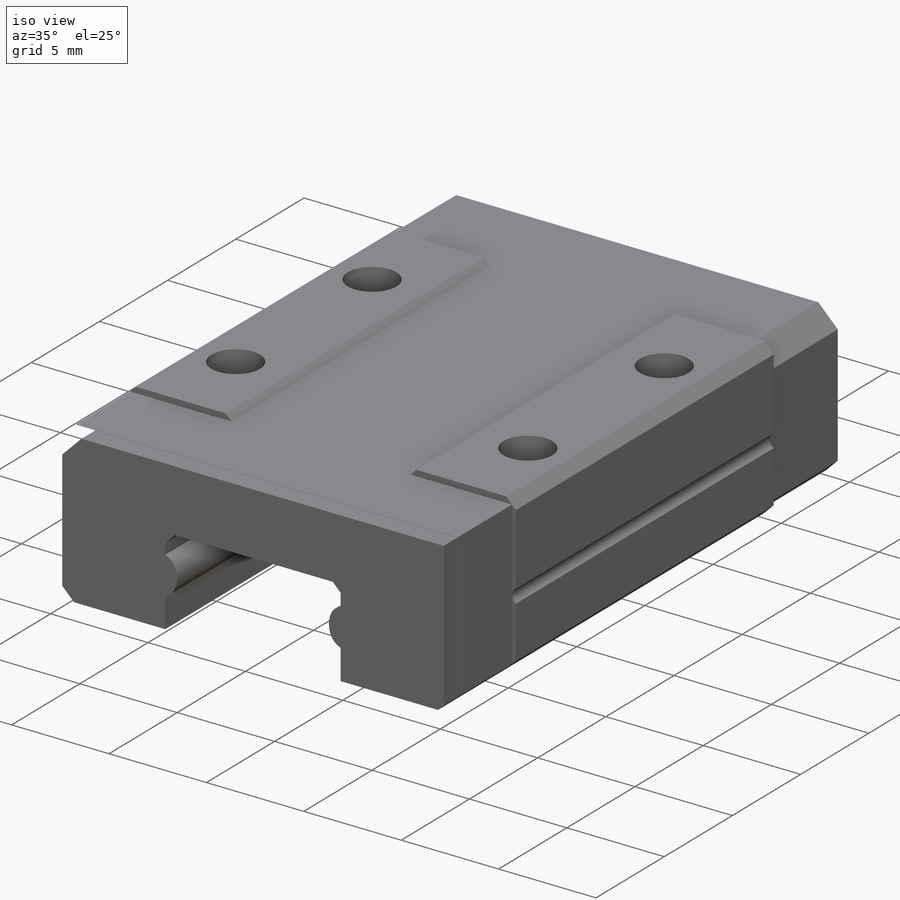
[diagram: iso view]
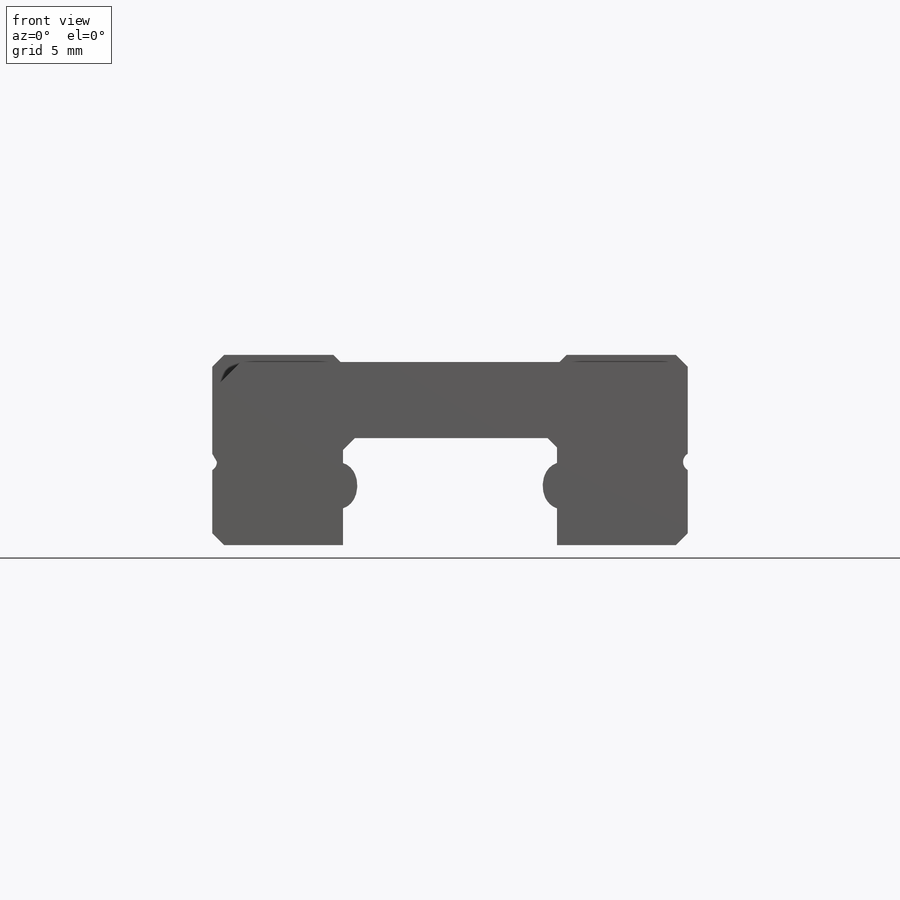
[diagram: front view]
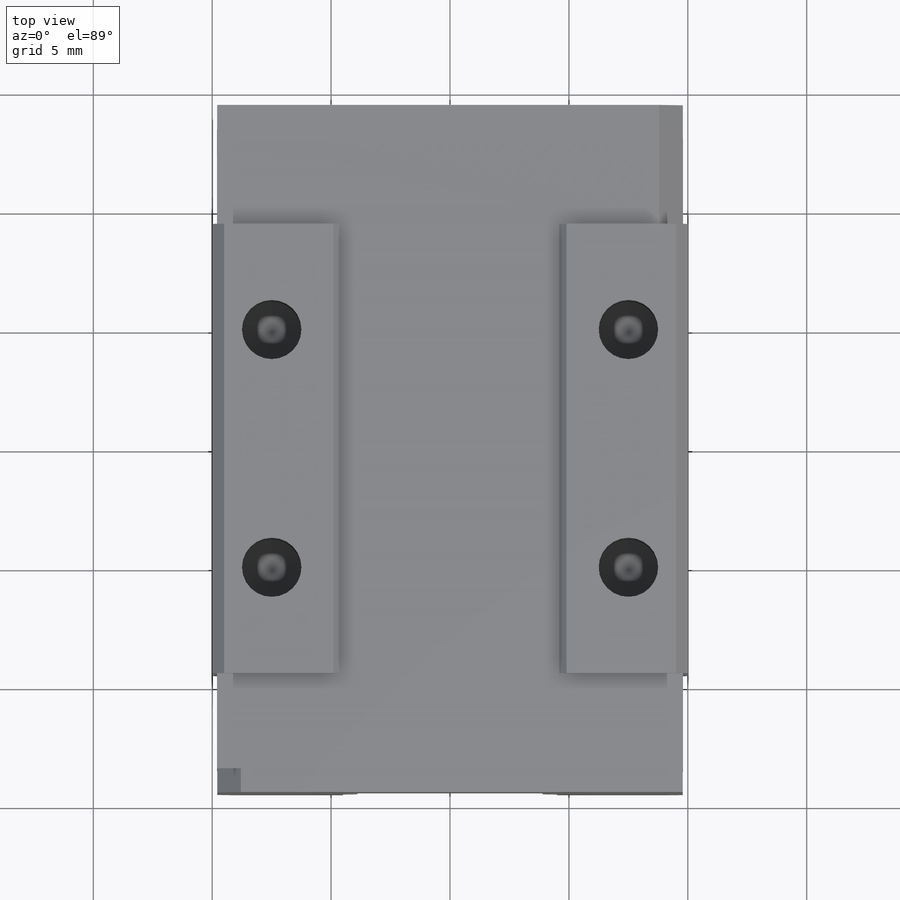
[diagram: top view]
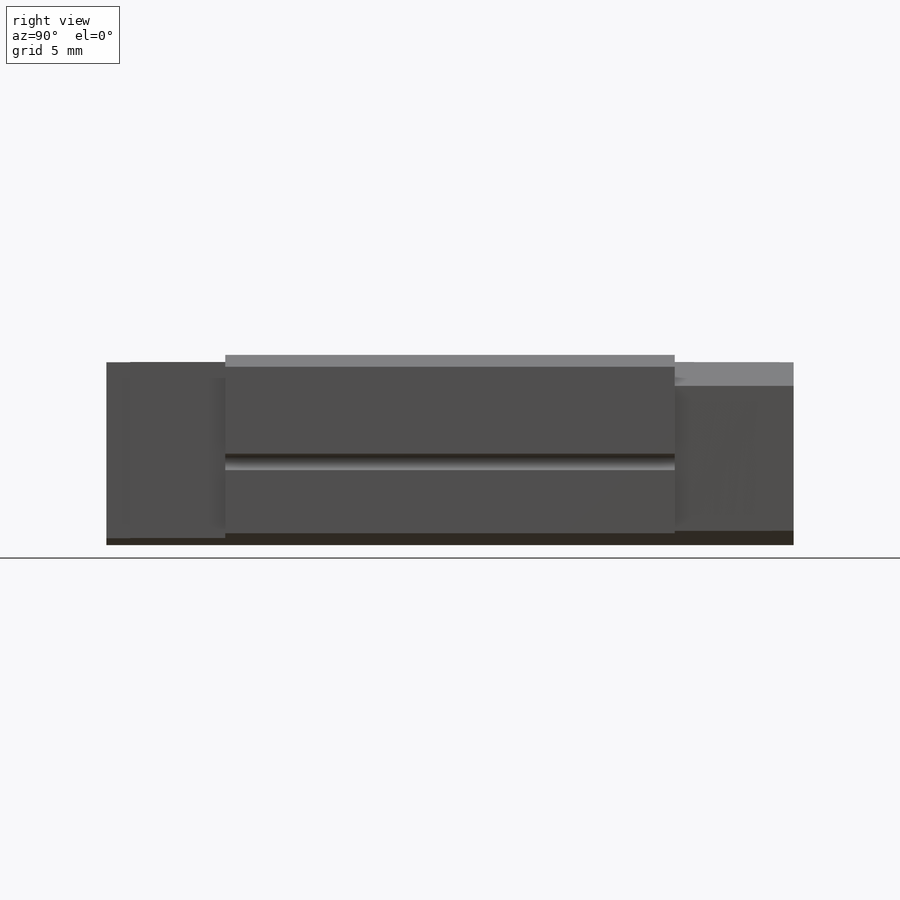
[diagram: right view]
SOLIDWORKS PART (.sldprt)
format: sldprt  version: not decoded by parser v0  size: 414,208 bytes
history: native  units: mm
features: sketch x17, extrude x7, cut_extrude x6, hole x2, chamfer x2, material x1, plane x1 (+13 scaffold rows collapsed)
feature tree (49):
  scaffold x13  (default folders/planes/origin — collapsed)
  material  "Material <not specified>"
  plane  "Plane1"
  sketch  "Sketch1"
  extrude  "Boss-Extrude1"  Depth=7.7mm
  sketch  "Sketch2"
  cut_extrude  "Cut-Extrude1"  Depth=4mm
  sketch  "Sketch3"
  cut_extrude  "Cut-Extrude2"  Depth=4mm
  sketch  "Sketch4"
  extrude  "Boss-Extrude2"  Depth=0.2mm
  sketch  "Sketch5"
  cut_extrude  "Cut-Extrude3"  Depth=18.9mm
  sketch  "Sketch6"
  extrude  "Boss-Extrude3"  Depth=4mm
  sketch  "Sketch7"
  extrude  "Boss-Extrude4"  Depth=1mm
  sketch  "Sketch8"
  extrude  "Boss-Extrude5"  Depth=1mm
  sketch  "Sketch9"
  extrude  "Boss-Extrude6"  Depth=0.3mm
  sketch  "Sketch10"
  cut_extrude  "Cut-Extrude4"  Depth=7.7mm
  sketch  "Sketch11"
  extrude  "Boss-Extrude7"  Depth=0.3mm
  sketch  "Sketch12"
  cut_extrude  "Cut-Extrude5"  Depth=28.9mm
  sketch  "Sketch13"
  cut_extrude  "Cut-Extrude6"  Depth=18.9mm
  hole  "Ø0.8 (0.8) Diameter Hole1"  Diameter=0.8mm Depth=2mm
  sketch  "Sketch15"
  sketch  "Sketch14"  dims[hole-wizard template sketch: 46 standard entries collapsed; hole parameters kept: c15.Hole Dia.=0.8mm c15.Hole Depth=2.0mm c15.D3=~14.816244mm c15.Drill Angle=180.0deg]
  hole  "Ø2.5 (2.5) Diameter Hole1"  Diameter=2.5mm Depth=3.75mm
  sketch  "Sketch17"
  sketch  "Sketch16"  dims[hole-wizard template sketch: 47 standard entries collapsed; hole parameters kept: c15.Hole Depth=3.75mm c15.D3=~14.816244mm c15.Drill Angle=118.0deg]
  chamfer  "Chamfer3"  Distance=0.5mm Angle=45deg
  chamfer  "Chamfer4"  Distance=0.4mm Angle=45deg
decode coverage: 19 of 34 modeling features carry decoded parameters
note: ~ marks probable driven/reference dimensions
note: suppression state not decoded; provenance and decode notes live in map.json
